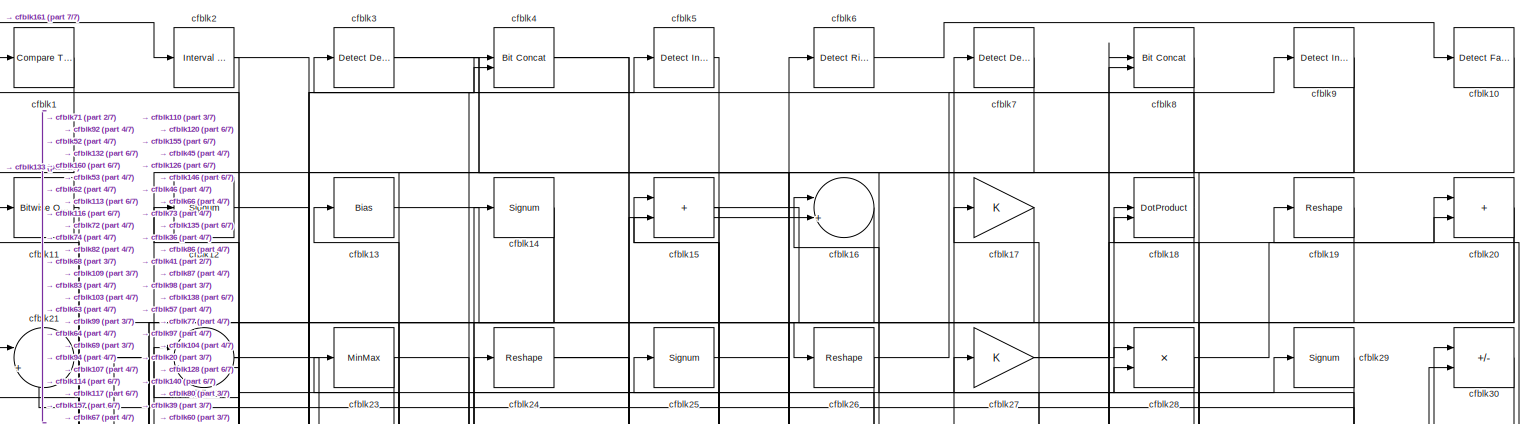
[diagram: root canvas - part 1/7, full width, top band]
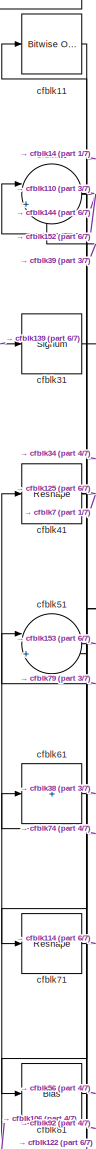
[diagram: root canvas - part 2/7, top left region]
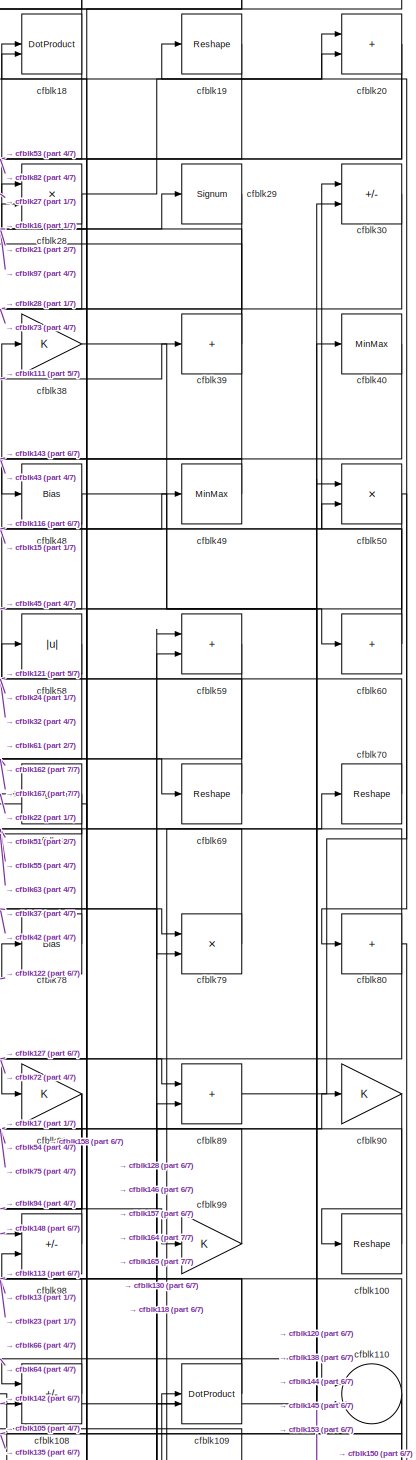
[diagram: root canvas - part 3/7, top right region]
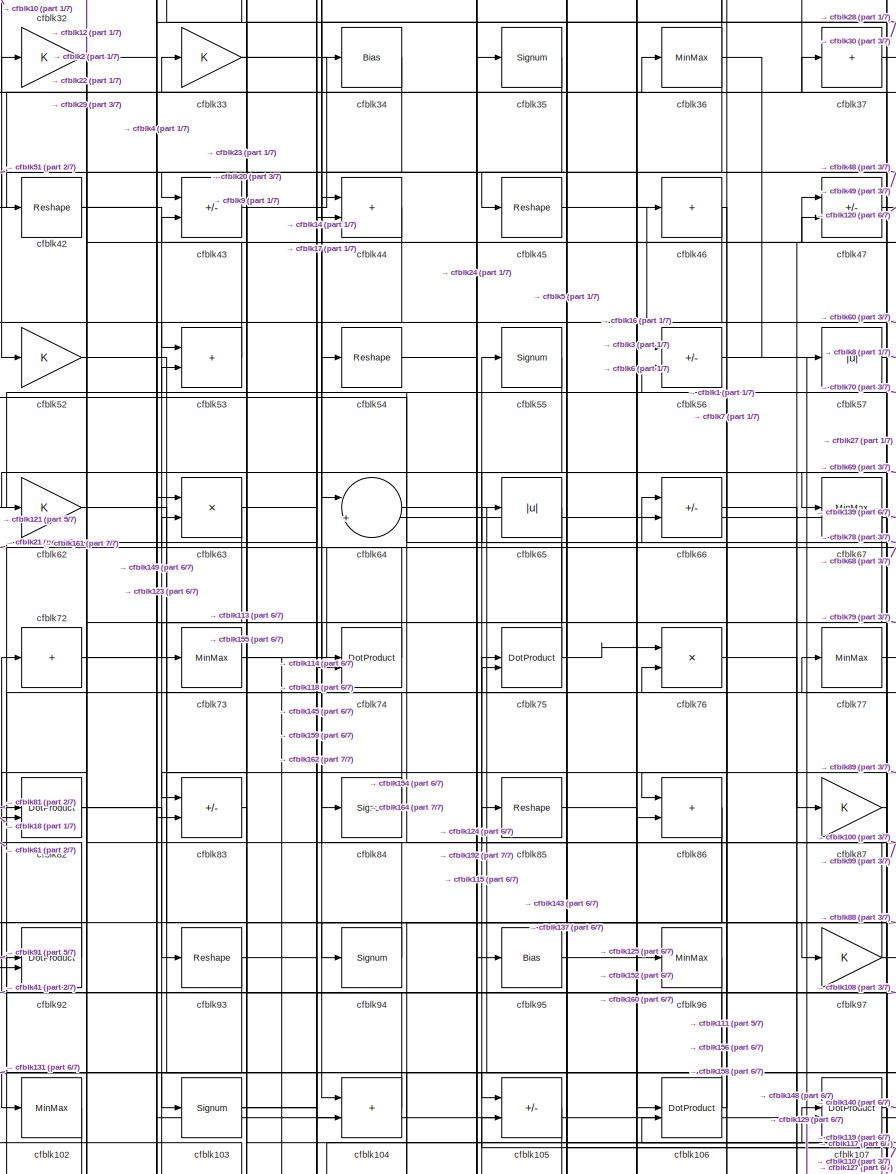
[diagram: root canvas - part 4/7, central region]
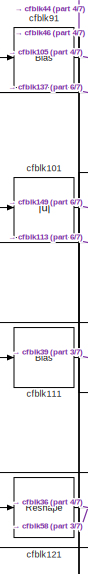
[diagram: root canvas - part 5/7, middle left region]
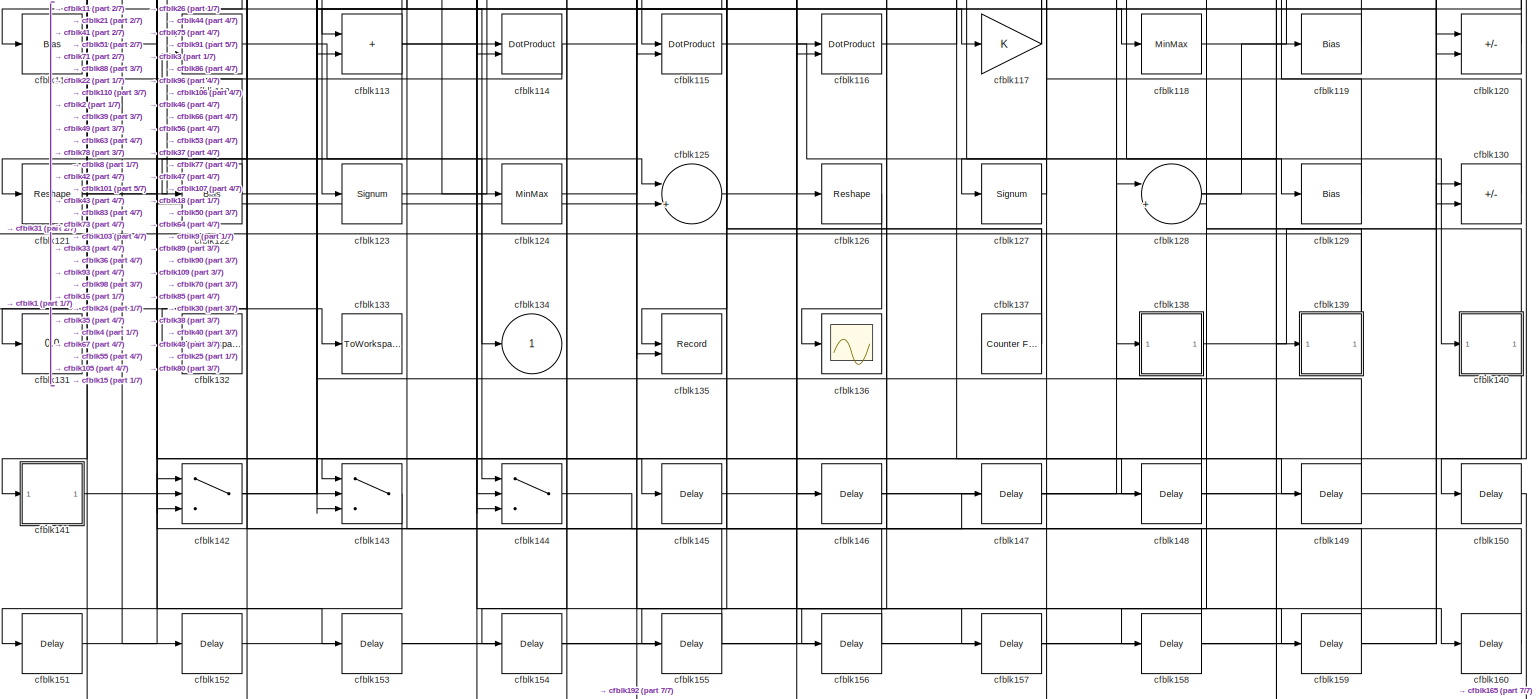
[diagram: root canvas - part 6/7, full width, bottom band]
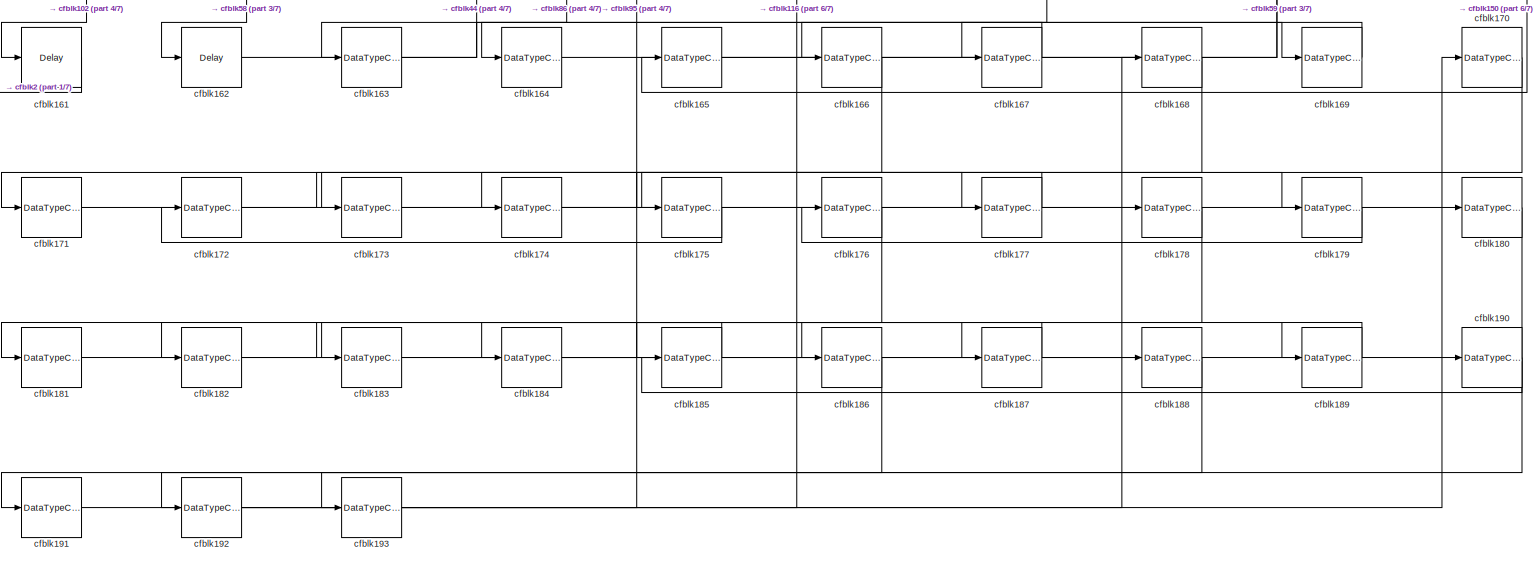
[diagram: root canvas - part 7/7, full width, bottom band]
MODEL slx_ae16916f63c7
KIND model
CONFIG AbsTol = auto
CONFIG EnableMultiTasking = off
CONFIG FixedStep = auto
CONFIG MaxStep = auto
CONFIG MinStep = auto
CONFIG RelTol = 1e-3
CONFIG SampleTimeConstraint = Unconstrained
CONFIG SolverName = VariableStepAuto
CONFIG StartTime = 0.0
CONFIG StopTime = 10.0
BLOCK [Reference] cfblk1  REF=hdlsllib/Logic and Bit
Operations/Compare
To Constant
  SourceBlock = hdlsllib/Logic and Bit\nOperations/Compare\nTo Constant
  SourceType = Compare To Constant
BLOCK [Reference] cfblk10  REF=hdlsllib/Logic and Bit
Operations/Detect Fall
Negative
  SourceBlock = hdlsllib/Logic and Bit\nOperations/Detect Fall\nNegative
  SourceType = Detect Fall Negative
BLOCK [Reshape] cfblk100
BLOCK [Abs] cfblk101
  SaturateOnIntegerOverflow = off
BLOCK [MinMax] cfblk102
BLOCK [Signum] cfblk103
BLOCK [Sum] cfblk104
  IconShape = rectangular
BLOCK [Sum] cfblk105
  IconShape = rectangular
  Inputs = +-
BLOCK [DotProduct] cfblk106
  OutDataTypeStr = Inherit: Inherit via internal rule
BLOCK [DotProduct] cfblk107
  OutDataTypeStr = Inherit: Inherit via internal rule
BLOCK [Sum] cfblk108
  IconShape = rectangular
  Inputs = +-
BLOCK [DotProduct] cfblk109
  OutDataTypeStr = Inherit: Inherit via internal rule
BLOCK [Reference] cfblk11  REF=simulink/Logic and Bit
Operations/Bitwise
Operator
  LibrarySourceBlock = hdlsllib/Logic and Bit\nOperations/Bitwise\nOperator
  SourceBlock = simulink/Logic and Bit\nOperations/Bitwise\nOperator
  SourceType = Bitwise Operator
BLOCK [Sum] cfblk110
  Inputs = |++
BLOCK [Bias] cfblk111
  Bias = 0.0
  SaturateOnIntegerOverflow = off
BLOCK [Sum] cfblk112
  IconShape = rectangular
BLOCK [Sum] cfblk113
  IconShape = rectangular
BLOCK [DotProduct] cfblk114
  OutDataTypeStr = Inherit: Inherit via internal rule
BLOCK [DotProduct] cfblk115
  OutDataTypeStr = Inherit: Inherit via internal rule
BLOCK [DotProduct] cfblk116
  OutDataTypeStr = Inherit: Inherit via internal rule
BLOCK [Gain] cfblk117
BLOCK [MinMax] cfblk118
BLOCK [Bias] cfblk119
  Bias = 0.0
  SaturateOnIntegerOverflow = off
BLOCK [Signum] cfblk12
BLOCK [Sum] cfblk120
  IconShape = rectangular
  Inputs = +-
BLOCK [Reshape] cfblk121
BLOCK [Bias] cfblk122
  Bias = 0.0
  SaturateOnIntegerOverflow = off
BLOCK [Signum] cfblk123
BLOCK [MinMax] cfblk124
BLOCK [Sum] cfblk125
  Inputs = |++
BLOCK [Reshape] cfblk126
BLOCK [Signum] cfblk127
BLOCK [Sum] cfblk128
  Inputs = |++
BLOCK [Bias] cfblk129
  Bias = 0.0
  SaturateOnIntegerOverflow = off
BLOCK [Bias] cfblk13
  Bias = 0.0
  SaturateOnIntegerOverflow = off
BLOCK [Sum] cfblk130
  IconShape = rectangular
  Inputs = +-
BLOCK [Display] cfblk131
  Decimation = 1
BLOCK [ToWorkspace] cfblk132
  MaxDataPoints = inf
  SampleTime = -1
  SaveFormat = Timeseries
  VariableName = simout
BLOCK [ToWorkspace] cfblk133
  MaxDataPoints = inf
  SampleTime = -1
  SaveFormat = Timeseries
  VariableName = simout
BLOCK [Outport] cfblk134
  VectorParamsAs1DForOutWhenUnconnected = off
BLOCK [Record] cfblk135
  CompatibilityTag = XY
  FileSettingsInternal = {"entries":[{"content":{"excelSettings":{"content":{},"type":"Streamout.ExcelSettings"}},"type":"Streamout.FileSettingStorage","uuid":""}],"packageUris":["http:\/\/schema.mathworks.com\/mf0\/streamout_blocks\/R2020a"],"version":"1.0"}
  Layout = [1 1]
  SignalsInternal = {"entries":[{"content":{"signals":[{"content":{"blockPath":[],"dimensions":[1],"domain":"","lineColor":"#a2142f","plots":[1],"port":1,"signalID":5446,"signalName":"XY Graph:1"},"type":"RecordBlkView.Signal","uuid":""},{"content":{"blockPath":[],"dimensions":[1],"domain":"","lineColor":"#139fff","plots":[1],"port":2,"signalID":5449,"signalName":"XY Graph:2"},"type":"RecordBlkView.Signal","uuid":""}...<+146ch>
  VisualizationBindings = {"xyplotplugin":{"info":[{"series":[{"bindingParametersList":[{"parameter":"X-Axis","signalID":5446,"signalName":"XY Graph:1"},{"parameter":"Y-Axis","signalID":5449,"signalName":"XY Graph:2"}],"seriesID":23493}],"subplotID":1}]}}
  st = -1
BLOCK [Scope] cfblk136
  Floating = off
  NumInputPorts = 1
  ScopeSpecificationString = Simulink.scopes.TimeScopeBlockCfg('CurrentConfiguration', extmgr.ConfigurationSet(extmgr.Configuration('Core','General UI',true),extmgr.Configuration('Core','Source UI',true),extmgr.Configuration('Sources','WiredSimulink',true,'DataLoggingVariableName','ScopeData2','DataLoggingSaveFormat','Array','DataLoggingLimitDataPoints',true,'DataLoggingDecimation','1'),extmgr.Configuration('Visuals','Time Do...<+868ch>
BLOCK [Reference] cfblk137  REF=hdlsllib/Sources/Counter
Free-Running
  SourceBlock = hdlsllib/Sources/Counter\nFree-Running
  SourceType = Counter Free-Running
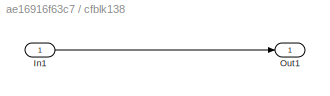
BLOCK [SubSystem] cfblk138
  LibrarySourceBlock = hdlsllib/Ports &\nSubsystems/Subsystem
BLOCK [Inport] cfblk138/In1
BLOCK [Outport] cfblk138/Out1
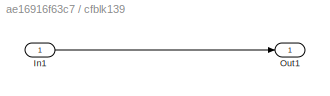
BLOCK [SubSystem] cfblk139
  LibrarySourceBlock = hdlsllib/Ports &\nSubsystems/Subsystem
BLOCK [Inport] cfblk139/In1
BLOCK [Outport] cfblk139/Out1
BLOCK [Signum] cfblk14
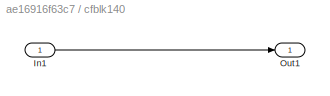
BLOCK [SubSystem] cfblk140
  LibrarySourceBlock = hdlsllib/Ports &\nSubsystems/Subsystem
BLOCK [Inport] cfblk140/In1
BLOCK [Outport] cfblk140/Out1
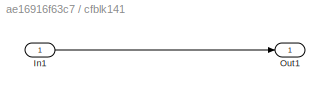
BLOCK [SubSystem] cfblk141
  LibrarySourceBlock = hdlsllib/Ports &\nSubsystems/Subsystem
BLOCK [Inport] cfblk141/In1
BLOCK [Outport] cfblk141/Out1
BLOCK [Switch] cfblk142
  InputSameDT = off
  SaturateOnIntegerOverflow = off
BLOCK [Switch] cfblk143
  InputSameDT = off
  SaturateOnIntegerOverflow = off
BLOCK [Switch] cfblk144
  InputSameDT = off
  SaturateOnIntegerOverflow = off
BLOCK [Delay] cfblk145
  InputPortMap = u0
  SampleTime = 1
BLOCK [Delay] cfblk146
  InputPortMap = u0
  SampleTime = 1
BLOCK [Delay] cfblk147
  InputPortMap = u0
  SampleTime = 1
BLOCK [Delay] cfblk148
  InputPortMap = u0
  SampleTime = 1
BLOCK [Delay] cfblk149
  InputPortMap = u0
  SampleTime = 1
BLOCK [Sum] cfblk15
  IconShape = rectangular
BLOCK [Delay] cfblk150
  InputPortMap = u0
  SampleTime = 1
BLOCK [Delay] cfblk151
  InputPortMap = u0
  SampleTime = 1
BLOCK [Delay] cfblk152
  InputPortMap = u0
  SampleTime = 1
BLOCK [Delay] cfblk153
  InputPortMap = u0
  SampleTime = 1
BLOCK [Delay] cfblk154
  InputPortMap = u0
  SampleTime = 1
BLOCK [Delay] cfblk155
  InputPortMap = u0
  SampleTime = 1
BLOCK [Delay] cfblk156
  InputPortMap = u0
  SampleTime = 1
BLOCK [Delay] cfblk157
  InputPortMap = u0
  SampleTime = 1
BLOCK [Delay] cfblk158
  InputPortMap = u0
  SampleTime = 1
BLOCK [Delay] cfblk159
  InputPortMap = u0
  SampleTime = 1
BLOCK [Sum] cfblk16
  Inputs = |++
BLOCK [Delay] cfblk160
  InputPortMap = u0
  SampleTime = 1
BLOCK [Delay] cfblk161
  InputPortMap = u0
  SampleTime = 1
BLOCK [Delay] cfblk162
  InputPortMap = u0
  SampleTime = 1
BLOCK [DataTypeConversion] cfblk163
  RndMeth = Floor
  SaturateOnIntegerOverflow = off
BLOCK [DataTypeConversion] cfblk164
  OutDataTypeStr = uint8
  RndMeth = Floor
  SaturateOnIntegerOverflow = off
BLOCK [DataTypeConversion] cfblk165
  OutDataTypeStr = uint8
  RndMeth = Floor
  SaturateOnIntegerOverflow = off
BLOCK [DataTypeConversion] cfblk166
  RndMeth = Floor
  SaturateOnIntegerOverflow = off
BLOCK [DataTypeConversion] cfblk167
  OutDataTypeStr = uint8
  RndMeth = Floor
  SaturateOnIntegerOverflow = off
BLOCK [DataTypeConversion] cfblk168
  RndMeth = Floor
  SaturateOnIntegerOverflow = off
BLOCK [DataTypeConversion] cfblk169
  OutDataTypeStr = uint8
  RndMeth = Floor
  SaturateOnIntegerOverflow = off
BLOCK [Gain] cfblk17
BLOCK [DataTypeConversion] cfblk170
  RndMeth = Floor
  SaturateOnIntegerOverflow = off
BLOCK [DataTypeConversion] cfblk171
  OutDataTypeStr = uint8
  RndMeth = Floor
  SaturateOnIntegerOverflow = off
BLOCK [DataTypeConversion] cfblk172
  RndMeth = Floor
  SaturateOnIntegerOverflow = off
BLOCK [DataTypeConversion] cfblk173
  OutDataTypeStr = uint8
  RndMeth = Floor
  SaturateOnIntegerOverflow = off
BLOCK [DataTypeConversion] cfblk174
  RndMeth = Floor
  SaturateOnIntegerOverflow = off
BLOCK [DataTypeConversion] cfblk175
  OutDataTypeStr = uint8
  RndMeth = Floor
  SaturateOnIntegerOverflow = off
BLOCK [DataTypeConversion] cfblk176
  RndMeth = Floor
  SaturateOnIntegerOverflow = off
BLOCK [DataTypeConversion] cfblk177
  OutDataTypeStr = uint8
  RndMeth = Floor
  SaturateOnIntegerOverflow = off
BLOCK [DataTypeConversion] cfblk178
  RndMeth = Floor
  SaturateOnIntegerOverflow = off
BLOCK [DataTypeConversion] cfblk179
  OutDataTypeStr = uint8
  RndMeth = Floor
  SaturateOnIntegerOverflow = off
BLOCK [DotProduct] cfblk18
  OutDataTypeStr = Inherit: Inherit via internal rule
BLOCK [DataTypeConversion] cfblk180
  RndMeth = Floor
  SaturateOnIntegerOverflow = off
BLOCK [DataTypeConversion] cfblk181
  OutDataTypeStr = uint8
  RndMeth = Floor
  SaturateOnIntegerOverflow = off
BLOCK [DataTypeConversion] cfblk182
  RndMeth = Floor
  SaturateOnIntegerOverflow = off
BLOCK [DataTypeConversion] cfblk183
  OutDataTypeStr = uint8
  RndMeth = Floor
  SaturateOnIntegerOverflow = off
BLOCK [DataTypeConversion] cfblk184
  RndMeth = Floor
  SaturateOnIntegerOverflow = off
BLOCK [DataTypeConversion] cfblk185
  OutDataTypeStr = uint8
  RndMeth = Floor
  SaturateOnIntegerOverflow = off
BLOCK [DataTypeConversion] cfblk186
  RndMeth = Floor
  SaturateOnIntegerOverflow = off
BLOCK [DataTypeConversion] cfblk187
  OutDataTypeStr = uint8
  RndMeth = Floor
  SaturateOnIntegerOverflow = off
BLOCK [DataTypeConversion] cfblk188
  RndMeth = Floor
  SaturateOnIntegerOverflow = off
BLOCK [DataTypeConversion] cfblk189
  OutDataTypeStr = uint8
  RndMeth = Floor
  SaturateOnIntegerOverflow = off
BLOCK [Reshape] cfblk19
BLOCK [DataTypeConversion] cfblk190
  RndMeth = Floor
  SaturateOnIntegerOverflow = off
BLOCK [DataTypeConversion] cfblk191
  OutDataTypeStr = uint8
  RndMeth = Floor
  SaturateOnIntegerOverflow = off
BLOCK [DataTypeConversion] cfblk192
  RndMeth = Floor
  SaturateOnIntegerOverflow = off
BLOCK [DataTypeConversion] cfblk193
  OutDataTypeStr = uint8
  RndMeth = Floor
  SaturateOnIntegerOverflow = off
BLOCK [Reference] cfblk2  REF=hdlsllib/Logic and Bit
Operations/Interval Test
  SourceBlock = hdlsllib/Logic and Bit\nOperations/Interval Test
  SourceType = Interval Test
BLOCK [Sum] cfblk20
  IconShape = rectangular
BLOCK [Sum] cfblk21
  Inputs = |++
BLOCK [Sum] cfblk22
  Inputs = |++
BLOCK [MinMax] cfblk23
BLOCK [Reshape] cfblk24
BLOCK [Signum] cfblk25
BLOCK [Reshape] cfblk26
BLOCK [Gain] cfblk27
BLOCK [Product] cfblk28
  Inputs = */
  RndMeth = Zero
  SaturateOnIntegerOverflow = on
BLOCK [Signum] cfblk29
BLOCK [Reference] cfblk3  REF=simulink/Logic and Bit
Operations/Detect
Decrease
  LibrarySourceBlock = hdlsllib/Logic and Bit\nOperations/Detect\nDecrease
  SourceBlock = simulink/Logic and Bit\nOperations/Detect\nDecrease
  SourceType = Detect Decrease
BLOCK [Sum] cfblk30
  IconShape = rectangular
  Inputs = +-
BLOCK [Signum] cfblk31
BLOCK [Gain] cfblk32
BLOCK [Gain] cfblk33
BLOCK [Bias] cfblk34
  Bias = 0.0
  SaturateOnIntegerOverflow = off
BLOCK [Signum] cfblk35
BLOCK [MinMax] cfblk36
BLOCK [Sum] cfblk37
  IconShape = rectangular
  Inputs = +
BLOCK [Gain] cfblk38
BLOCK [Sum] cfblk39
  IconShape = rectangular
  Inputs = +
BLOCK [Reference] cfblk4  REF=hdlsllib/Logic and Bit
Operations/Bit Concat
  SourceBlock = hdlsllib/Logic and Bit\nOperations/Bit Concat
  SourceType = Bit Concat
BLOCK [MinMax] cfblk40
BLOCK [Reshape] cfblk41
BLOCK [Reshape] cfblk42
BLOCK [Sum] cfblk43
  IconShape = rectangular
  Inputs = +-
BLOCK [Sum] cfblk44
  IconShape = rectangular
BLOCK [Reshape] cfblk45
BLOCK [Sum] cfblk46
  IconShape = rectangular
  Inputs = +
BLOCK [Sum] cfblk47
  IconShape = rectangular
  Inputs = +-
BLOCK [Bias] cfblk48
  Bias = 0.0
  SaturateOnIntegerOverflow = off
BLOCK [MinMax] cfblk49
BLOCK [Reference] cfblk5  REF=simulink/Logic and Bit
Operations/Detect
Increase
  LibrarySourceBlock = hdlsllib/Logic and Bit\nOperations/Detect\nIncrease
  SourceBlock = simulink/Logic and Bit\nOperations/Detect\nIncrease
  SourceType = Detect Increase
BLOCK [Product] cfblk50
  Inputs = */
  RndMeth = Zero
  SaturateOnIntegerOverflow = on
BLOCK [Sum] cfblk51
  Inputs = |++
BLOCK [Gain] cfblk52
BLOCK [Sum] cfblk53
  IconShape = rectangular
BLOCK [Reshape] cfblk54
BLOCK [Signum] cfblk55
BLOCK [Sum] cfblk56
  IconShape = rectangular
  Inputs = +-
BLOCK [Abs] cfblk57
  SaturateOnIntegerOverflow = off
BLOCK [Abs] cfblk58
  SaturateOnIntegerOverflow = off
BLOCK [Sum] cfblk59
  IconShape = rectangular
BLOCK [Reference] cfblk6  REF=hdlsllib/Logic and Bit
Operations/Detect Rise
Positive
  SourceBlock = hdlsllib/Logic and Bit\nOperations/Detect Rise\nPositive
  SourceType = Detect Rise Positive
BLOCK [Sum] cfblk60
  IconShape = rectangular
  Inputs = +
BLOCK [Sum] cfblk61
  IconShape = rectangular
  Inputs = +
BLOCK [Gain] cfblk62
BLOCK [Product] cfblk63
  Inputs = */
  RndMeth = Zero
  SaturateOnIntegerOverflow = on
BLOCK [Sum] cfblk64
  Inputs = |++
BLOCK [Abs] cfblk65
  SaturateOnIntegerOverflow = off
BLOCK [Sum] cfblk66
  IconShape = rectangular
  Inputs = +-
BLOCK [MinMax] cfblk67
BLOCK [Signum] cfblk68
BLOCK [Reshape] cfblk69
BLOCK [Reference] cfblk7  REF=simulink/Logic and Bit
Operations/Detect
Decrease
  LibrarySourceBlock = hdlsllib/Logic and Bit\nOperations/Detect\nDecrease
  SourceBlock = simulink/Logic and Bit\nOperations/Detect\nDecrease
  SourceType = Detect Decrease
BLOCK [Reshape] cfblk70
BLOCK [Reshape] cfblk71
BLOCK [Sum] cfblk72
  IconShape = rectangular
  Inputs = +
BLOCK [MinMax] cfblk73
BLOCK [DotProduct] cfblk74
  OutDataTypeStr = Inherit: Inherit via internal rule
BLOCK [DotProduct] cfblk75
  OutDataTypeStr = Inherit: Inherit via internal rule
BLOCK [Product] cfblk76
  Inputs = */
  RndMeth = Zero
  SaturateOnIntegerOverflow = on
BLOCK [MinMax] cfblk77
BLOCK [Bias] cfblk78
  Bias = 0.0
  SaturateOnIntegerOverflow = off
BLOCK [Product] cfblk79
  Inputs = */
  RndMeth = Zero
  SaturateOnIntegerOverflow = on
BLOCK [Reference] cfblk8  REF=hdlsllib/Logic and Bit
Operations/Bit Concat
  SourceBlock = hdlsllib/Logic and Bit\nOperations/Bit Concat
  SourceType = Bit Concat
BLOCK [Sum] cfblk80
  IconShape = rectangular
  Inputs = +
BLOCK [Bias] cfblk81
  Bias = 0.0
  SaturateOnIntegerOverflow = off
BLOCK [DotProduct] cfblk82
  OutDataTypeStr = Inherit: Inherit via internal rule
BLOCK [Sum] cfblk83
  IconShape = rectangular
  Inputs = +-
BLOCK [Signum] cfblk84
BLOCK [Reshape] cfblk85
BLOCK [Sum] cfblk86
  IconShape = rectangular
BLOCK [Gain] cfblk87
BLOCK [Gain] cfblk88
BLOCK [Sum] cfblk89
  IconShape = rectangular
BLOCK [Reference] cfblk9  REF=simulink/Logic and Bit
Operations/Detect
Increase
  LibrarySourceBlock = hdlsllib/Logic and Bit\nOperations/Detect\nIncrease
  SourceBlock = simulink/Logic and Bit\nOperations/Detect\nIncrease
  SourceType = Detect Increase
BLOCK [Gain] cfblk90
BLOCK [Bias] cfblk91
  Bias = 0.0
  SaturateOnIntegerOverflow = off
BLOCK [DotProduct] cfblk92
  OutDataTypeStr = Inherit: Inherit via internal rule
BLOCK [Reshape] cfblk93
BLOCK [Signum] cfblk94
BLOCK [Bias] cfblk95
  Bias = 0.0
  SaturateOnIntegerOverflow = off
BLOCK [MinMax] cfblk96
BLOCK [Gain] cfblk97
BLOCK [Sum] cfblk98
  IconShape = rectangular
  Inputs = +-
BLOCK [Gain] cfblk99
LINE cfblk100:1 -> cfblk75:1
LINE cfblk101:1 -> cfblk149:1
LINE cfblk102:1 -> cfblk161:1
NET cfblk103:1 -> cfblk159:1, cfblk28:1
LINE cfblk104:1 -> cfblk72:1
LINE cfblk105:1 -> cfblk143:3
NET cfblk106:1 -> cfblk41:1, cfblk76:2
LINE cfblk107:1 -> cfblk140:1
LINE cfblk108:1 -> cfblk66:1
NET cfblk109:1 -> cfblk13:1, cfblk23:1
LINE cfblk10:1 -> cfblk52:1
NET cfblk110:1 -> cfblk105:2, cfblk135:2, cfblk15:2
LINE cfblk111:1 -> cfblk39:1
LINE cfblk112:1 -> cfblk144:1
NET cfblk113:1 -> cfblk101:1, cfblk134:1, cfblk141:1, cfblk98:2
NET cfblk114:1 -> cfblk112:2, cfblk16:2
LINE cfblk115:1 -> cfblk139:1
LINE cfblk116:1 -> cfblk50:2
NET cfblk117:1 -> cfblk53:2, cfblk56:2
LINE cfblk118:1 -> cfblk70:1
LINE cfblk119:1 -> cfblk85:1
LINE cfblk11:1 -> cfblk81:1
LINE cfblk120:1 -> cfblk25:1
NET cfblk121:1 -> cfblk36:1, cfblk58:1
NET cfblk122:1 -> cfblk11:1, cfblk78:1
LINE cfblk123:1 -> cfblk107:1
LINE cfblk124:1 -> cfblk35:1
LINE cfblk125:1 -> cfblk96:1
LINE cfblk126:1 -> cfblk136:1
LINE cfblk127:1 -> cfblk77:1
NET cfblk128:1 -> cfblk119:1, cfblk90:1
LINE cfblk129:1 -> cfblk37:1
LINE cfblk12:1 -> cfblk74:2
LINE cfblk130:1 -> cfblk109:1
NET cfblk137:1 -> cfblk44:1, cfblk91:1
LINE cfblk138/In1:1 -> cfblk138/Out1:1
LINE cfblk138:1 -> cfblk40:1
LINE cfblk139/In1:1 -> cfblk139/Out1:1
NET cfblk139:1 -> cfblk31:1, cfblk64:2
LINE cfblk13:1 -> cfblk26:1
LINE cfblk140/In1:1 -> cfblk140/Out1:1
NET cfblk140:1 -> cfblk143:1, cfblk18:2
LINE cfblk141/In1:1 -> cfblk141/Out1:1
LINE cfblk141:1 -> cfblk112:1
NET cfblk142:1 -> cfblk110:2, cfblk49:1
LINE cfblk143:1 -> cfblk151:1
LINE cfblk144:1 -> cfblk147:1
LINE cfblk145:1 -> cfblk30:2
LINE cfblk146:1 -> cfblk109:2
LINE cfblk147:1 -> cfblk128:1
LINE cfblk148:1 -> cfblk98:1
LINE cfblk149:1 -> cfblk63:1
NET cfblk14:1 -> cfblk71:1, cfblk92:2
LINE cfblk150:1 -> cfblk165:1
LINE cfblk151:1 -> cfblk142:1
LINE cfblk152:1 -> cfblk86:2
LINE cfblk153:1 -> cfblk50:1
LINE cfblk154:1 -> cfblk130:1
LINE cfblk155:1 -> cfblk43:2
LINE cfblk156:1 -> cfblk142:2
LINE cfblk157:1 -> cfblk89:2
LINE cfblk158:1 -> cfblk106:2
LINE cfblk159:1 -> cfblk75:2
NET cfblk15:1 -> cfblk138:1, cfblk155:1
LINE cfblk160:1 -> cfblk22:2
LINE cfblk161:1 -> cfblk2:1
LINE cfblk162:1 -> cfblk44:2
LINE cfblk163:1 -> cfblk169:1
LINE cfblk164:1 -> cfblk59:1
LINE cfblk165:1 -> cfblk59:2
LINE cfblk166:1 -> cfblk171:1
LINE cfblk167:1 -> cfblk163:1
LINE cfblk168:1 -> cfblk173:1
LINE cfblk169:1 -> cfblk166:1
LINE cfblk16:1 -> cfblk66:2
LINE cfblk170:1 -> cfblk175:1
LINE cfblk171:1 -> cfblk168:1
LINE cfblk172:1 -> cfblk177:1
LINE cfblk173:1 -> cfblk170:1
LINE cfblk174:1 -> cfblk179:1
LINE cfblk175:1 -> cfblk172:1
LINE cfblk176:1 -> cfblk181:1
LINE cfblk177:1 -> cfblk174:1
LINE cfblk178:1 -> cfblk183:1
LINE cfblk179:1 -> cfblk176:1
LINE cfblk17:1 -> cfblk64:1
LINE cfblk180:1 -> cfblk185:1
LINE cfblk181:1 -> cfblk178:1
LINE cfblk182:1 -> cfblk187:1
LINE cfblk183:1 -> cfblk180:1
LINE cfblk184:1 -> cfblk189:1
LINE cfblk185:1 -> cfblk182:1
LINE cfblk186:1 -> cfblk191:1
LINE cfblk187:1 -> cfblk184:1
LINE cfblk188:1 -> cfblk193:1
LINE cfblk189:1 -> cfblk186:1
NET cfblk18:1 -> cfblk3:1, cfblk82:2
LINE cfblk190:1 -> cfblk192:1
LINE cfblk191:1 -> cfblk188:1
NET cfblk192:1 -> cfblk116:1, cfblk95:1
LINE cfblk193:1 -> cfblk190:1
LINE cfblk19:1 -> cfblk88:1
LINE cfblk1:1 -> cfblk133:1
NET cfblk20:1 -> cfblk53:1, cfblk82:1
NET cfblk21:1 -> cfblk110:1, cfblk144:3, cfblk152:1
NET cfblk22:1 -> cfblk132:1, cfblk68:1
NET cfblk23:1 -> cfblk83:2, cfblk99:1
NET cfblk24:1 -> cfblk107:2, cfblk117:1
LINE cfblk25:1 -> cfblk146:1
NET cfblk26:1 -> cfblk135:1, cfblk9:1
NET cfblk27:1 -> cfblk18:1, cfblk20:2
NET cfblk28:1 -> cfblk104:1, cfblk20:1
LINE cfblk29:1 -> cfblk73:1
NET cfblk2:1 -> cfblk116:2, cfblk62:1
LINE cfblk30:1 -> cfblk43:1
LINE cfblk31:1 -> cfblk125:1
LINE cfblk32:1 -> cfblk74:1
NET cfblk33:1 -> cfblk106:1, cfblk145:1
LINE cfblk34:1 -> cfblk51:2
LINE cfblk35:1 -> cfblk102:1
NET cfblk36:1 -> cfblk114:2, cfblk1:1, cfblk57:1
LINE cfblk37:1 -> cfblk79:1
LINE cfblk38:1 -> cfblk120:1
NET cfblk39:1 -> cfblk143:2, cfblk16:1, cfblk21:2
NET cfblk3:1 -> cfblk126:1, cfblk46:1
LINE cfblk40:1 -> cfblk122:1
NET cfblk41:1 -> cfblk125:2, cfblk7:1
NET cfblk42:1 -> cfblk123:1, cfblk34:1, cfblk79:2
LINE cfblk43:1 -> cfblk48:1
LINE cfblk44:1 -> cfblk121:1
LINE cfblk45:1 -> cfblk60:1
NET cfblk46:1 -> cfblk111:1, cfblk156:1
LINE cfblk47:1 -> cfblk120:2
NET cfblk48:1 -> cfblk130:2, cfblk144:2
LINE cfblk49:1 -> cfblk42:1
NET cfblk4:1 -> cfblk157:1, cfblk67:1
NET cfblk50:1 -> cfblk158:1, cfblk80:1
LINE cfblk51:1 -> cfblk153:1
LINE cfblk52:1 -> cfblk104:2
LINE cfblk53:1 -> cfblk12:1
LINE cfblk54:1 -> cfblk69:1
LINE cfblk55:1 -> cfblk115:1
LINE cfblk56:1 -> cfblk129:1
LINE cfblk57:1 -> cfblk8:1
LINE cfblk58:1 -> cfblk162:1
LINE cfblk59:1 -> cfblk167:1
LINE cfblk5:1 -> cfblk45:1
NET cfblk60:1 -> cfblk15:1, cfblk30:1
LINE cfblk61:1 -> cfblk38:1
NET cfblk62:1 -> cfblk47:2, cfblk97:1
NET cfblk63:1 -> cfblk5:1, cfblk92:1
LINE cfblk64:1 -> cfblk108:1
LINE cfblk65:1 -> cfblk84:1
LINE cfblk66:1 -> cfblk148:1
LINE cfblk67:1 -> cfblk115:2
LINE cfblk68:1 -> cfblk63:2
LINE cfblk69:1 -> cfblk24:1
LINE cfblk6:1 -> cfblk10:1
LINE cfblk70:1 -> cfblk32:1
LINE cfblk71:1 -> cfblk114:1
NET cfblk72:1 -> cfblk4:1, cfblk89:1
NET cfblk73:1 -> cfblk124:1, cfblk6:1
LINE cfblk74:1 -> cfblk21:1
NET cfblk75:1 -> cfblk65:1, cfblk76:1
LINE cfblk76:1 -> cfblk87:1
LINE cfblk77:1 -> cfblk8:2
LINE cfblk78:1 -> cfblk55:1
LINE cfblk79:1 -> cfblk51:1
LINE cfblk7:1 -> cfblk86:1
NET cfblk80:1 -> cfblk127:1, cfblk150:1, cfblk28:2
LINE cfblk81:1 -> cfblk56:1
NET cfblk82:1 -> cfblk4:2, cfblk93:1
LINE cfblk83:1 -> cfblk113:1
LINE cfblk84:1 -> cfblk33:1
LINE cfblk85:1 -> cfblk160:1
NET cfblk86:1 -> cfblk103:1, cfblk164:1
LINE cfblk87:1 -> cfblk27:1
NET cfblk88:1 -> cfblk108:2, cfblk142:3, cfblk94:1
LINE cfblk89:1 -> cfblk19:1
LINE cfblk8:1 -> cfblk113:2
LINE cfblk90:1 -> cfblk100:1
LINE cfblk91:1 -> cfblk105:1
LINE cfblk92:1 -> cfblk61:1
NET cfblk93:1 -> cfblk118:1, cfblk131:1
LINE cfblk94:1 -> cfblk14:1
LINE cfblk95:1 -> cfblk47:1
LINE cfblk96:1 -> cfblk154:1
NET cfblk97:1 -> cfblk22:1, cfblk29:1
LINE cfblk98:1 -> cfblk17:1
LINE cfblk99:1 -> cfblk54:1
NET cfblk9:1 -> cfblk128:2, cfblk83:1
note: NET lines group one-source signal fan-out (src -> all destinations, sorted); 1:1 wires keep LINE
